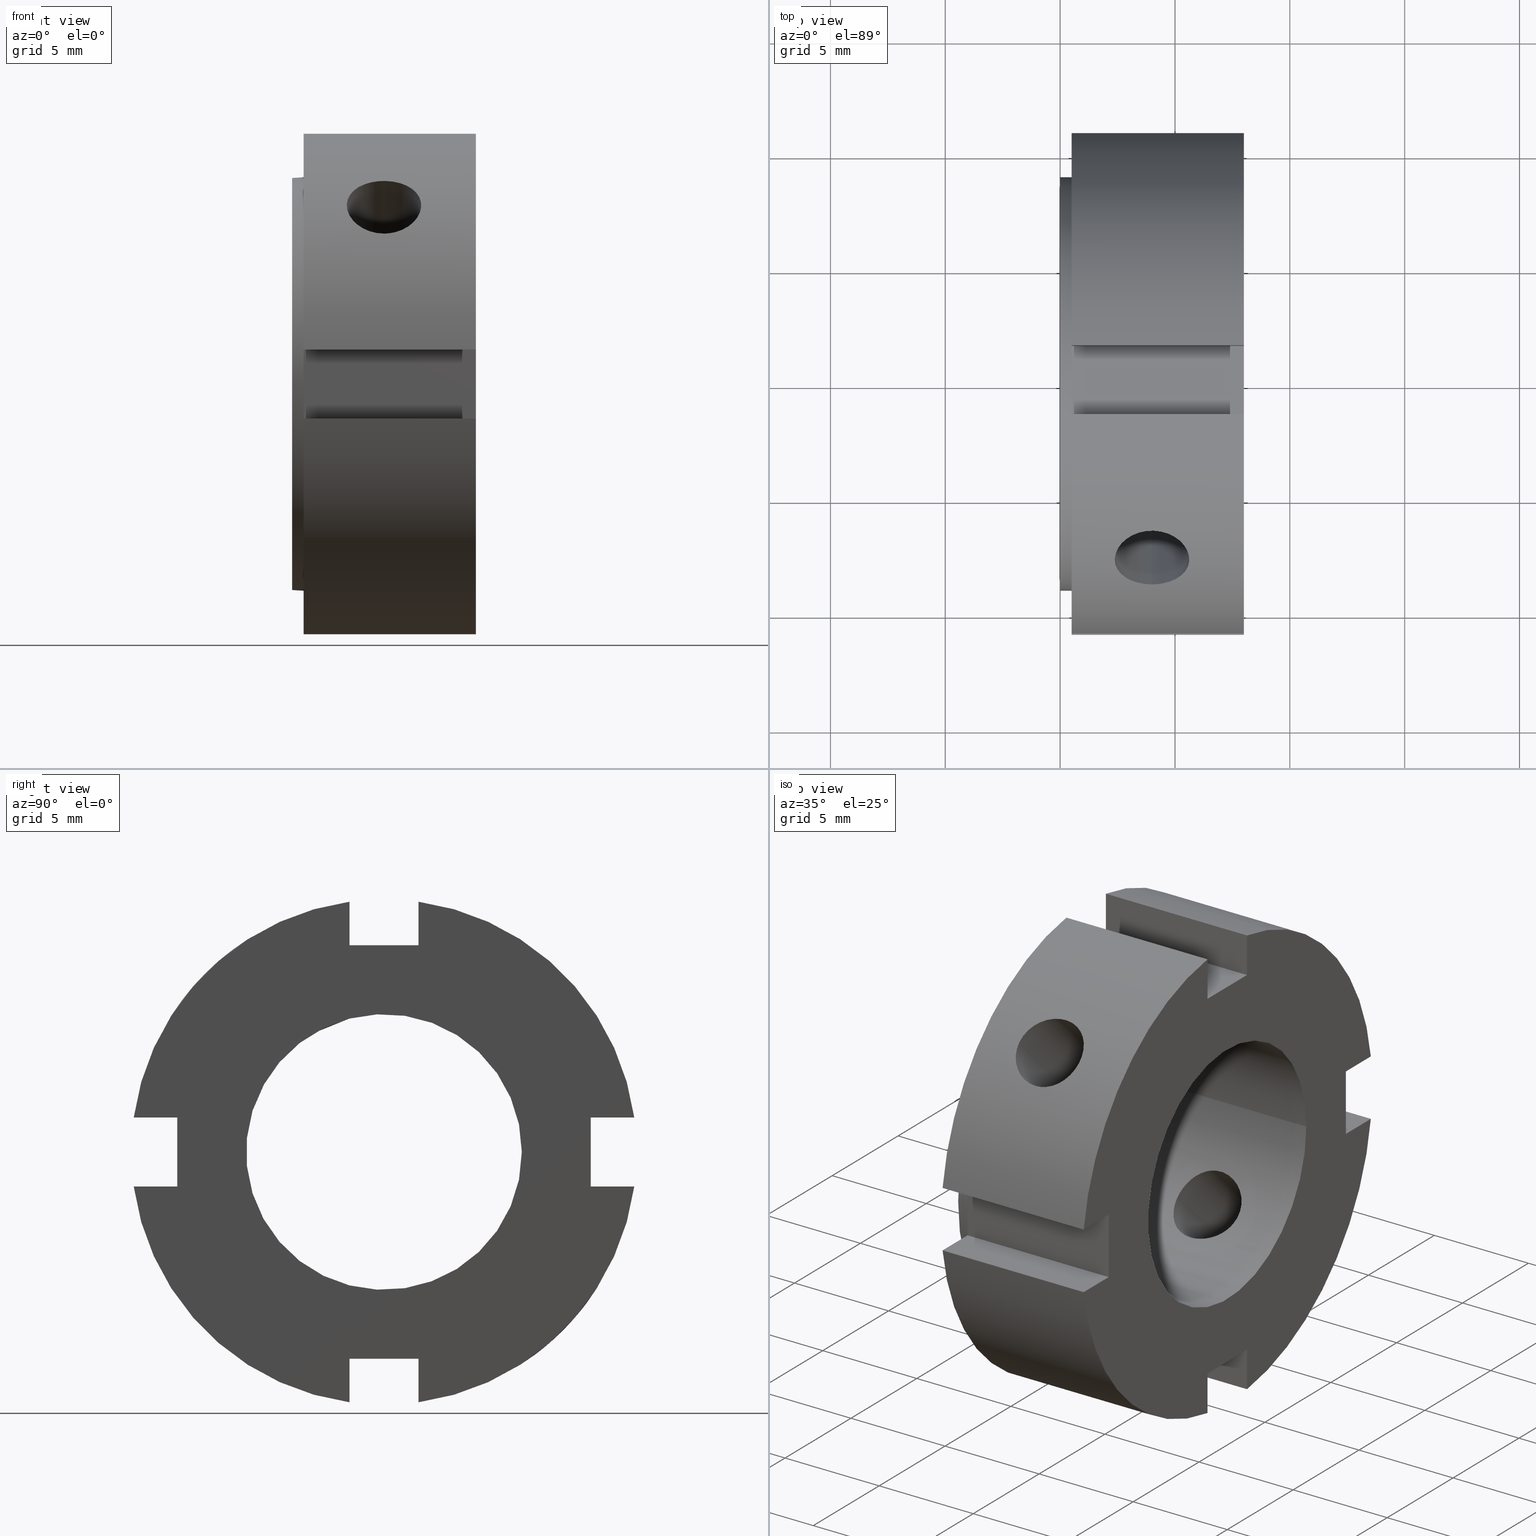
[diagram: canonical four-view strip — front | top / right | iso, engineering-drawing reading convention]
A machine part, canonical four-view strip (front | top / right | iso — engineering-drawing reading convention). The complete STEP part file that produces these views, byte-faithful:
ISO-10303-21;
HEADER;
/****************************************************************
 * Generated by software with PDE/Lib inside                    *
 * PDElib Version v51a, created Thu 01/14/2010                  *
 * ITI Transcendata (http://www.transcendata.com/)              *
 ****************************************************************/
FILE_DESCRIPTION((''),'2;1');
FILE_NAME('C:\\Users\\fkd-ct1n\\Desktop\\ZM\\FKD ZM 12.stp','2014-07-16T11:46:52',('fkd-ct1n'),(''),'Autodesk Inventor 2011','Autodesk Inventor 2011','');
FILE_SCHEMA(('AUTOMOTIVE_DESIGN { 1 0 10303 214 1 1 1 1 }'));
ENDSEC;
DATA;
#5=APPLICATION_CONTEXT('automotive design');
#6=APPLICATION_PROTOCOL_DEFINITION('International Standard','automotive_design',2001,#5);
#7=PRODUCT_CONTEXT('',#5,'mechanical');
#8=PRODUCT('FKD ZM 12','FKD ZM 12',$,(#7));
#9=PRODUCT_RELATED_PRODUCT_CATEGORY('part',$,(#8));
#10=PRODUCT_DEFINITION_FORMATION('',$,#8);
#11=PRODUCT_DEFINITION_CONTEXT('part definition',#5,'design');
#12=PRODUCT_DEFINITION('',$,#10,#11);
#18=(NAMED_UNIT(*)PLANE_ANGLE_UNIT()SI_UNIT($,.RADIAN.));
#19=DIMENSIONAL_EXPONENTS(0.0,0.0,0.0,0.0,0.0,0.0,0.0);
#20=PLANE_ANGLE_MEASURE_WITH_UNIT(PLANE_ANGLE_MEASURE(0.017453292500000),#18);
#24=(CONVERSION_BASED_UNIT('DEGREE',#20)NAMED_UNIT(#19)PLANE_ANGLE_UNIT());
#28=(NAMED_UNIT(*)SI_UNIT($,.STERADIAN.)SOLID_ANGLE_UNIT());
#32=(LENGTH_UNIT()NAMED_UNIT(*)SI_UNIT(.MILLI.,.METRE.));
#34=UNCERTAINTY_MEASURE_WITH_UNIT(LENGTH_MEASURE(0.010000000000000),#32,'DISTANCE_ACCURACY_VALUE','');
#36=(GEOMETRIC_REPRESENTATION_CONTEXT(3)GLOBAL_UNCERTAINTY_ASSIGNED_CONTEXT((#34))GLOBAL_UNIT_ASSIGNED_CONTEXT((#24,#28,#32))REPRESENTATION_CONTEXT('None','None'));
#37=AXIS2_PLACEMENT_3D('',#38,#39,#40);
#38=CARTESIAN_POINT('',(0.0,0.0,0.0));
#39=DIRECTION('',(0.0,0.0,1.0));
#40=DIRECTION('',(1.0,0.0,0.0));
#41=SHAPE_REPRESENTATION('',(#37),#36);
#42=PRODUCT_DEFINITION_SHAPE('','',#12);
#43=SHAPE_DEFINITION_REPRESENTATION(#42,#41);
#49=(NAMED_UNIT(*)PLANE_ANGLE_UNIT()SI_UNIT($,.RADIAN.));
#50=DIMENSIONAL_EXPONENTS(0.0,0.0,0.0,0.0,0.0,0.0,0.0);
#51=PLANE_ANGLE_MEASURE_WITH_UNIT(PLANE_ANGLE_MEASURE(0.017453292500000),#49);
#55=(CONVERSION_BASED_UNIT('DEGREE',#51)NAMED_UNIT(#50)PLANE_ANGLE_UNIT());
#59=(NAMED_UNIT(*)SI_UNIT($,.STERADIAN.)SOLID_ANGLE_UNIT());
#63=(LENGTH_UNIT()NAMED_UNIT(*)SI_UNIT(.MILLI.,.METRE.));
#65=UNCERTAINTY_MEASURE_WITH_UNIT(LENGTH_MEASURE(0.000001000000000),#63,'DISTANCE_ACCURACY_VALUE','');
#67=(GEOMETRIC_REPRESENTATION_CONTEXT(3)GLOBAL_UNCERTAINTY_ASSIGNED_CONTEXT((#65))GLOBAL_UNIT_ASSIGNED_CONTEXT((#55,#59,#63))REPRESENTATION_CONTEXT('','3D'));
#68=CARTESIAN_POINT('',(3.999999999999997,-22.516660498395392,22.516660498395396));
#69=DIRECTION('',(0.0,-0.707106781186547,0.707106781186548));
#70=DIRECTION('',(1.0,0.0,0.0));
#71=AXIS2_PLACEMENT_3D('',#68,#69,#70);
#72=CYLINDRICAL_SURFACE('',#71,1.621000000000000);
#73=CARTESIAN_POINT('',(3.999999999999997,-8.839475547570686,6.547035362963900));
#74=VERTEX_POINT('',#73);
#75=CARTESIAN_POINT('',(3.999999999999997,-8.839475547570686,6.547035362963900));
#76=CARTESIAN_POINT('',(3.796142769904900,-8.839475547570686,6.547035362963900));
#77=CARTESIAN_POINT('',(3.578903577574677,-8.815094253102171,6.580356519688689));
#78=CARTESIAN_POINT('',(3.179612484980892,-8.714136118925408,6.713479742443687));
#79=CARTESIAN_POINT('',(2.997534770452102,-8.637331490035944,6.813031413470040));
#80=CARTESIAN_POINT('',(2.710027378099478,-8.455333084321632,7.037629861303332));
#81=CARTESIAN_POINT('',(2.585322812457487,-8.337903377266315,7.177698352393069));
#82=CARTESIAN_POINT('',(2.419800965029881,-8.071517897913950,7.476000614545657));
#83=CARTESIAN_POINT('',(2.378999999999997,-7.922321083293664,7.634028102810378));
#84=CARTESIAN_POINT('',(2.378999999999997,-7.634028102810375,7.922321083293664));
#85=CARTESIAN_POINT('',(2.419800965029881,-7.476000614545653,8.071517897913953));
#86=CARTESIAN_POINT('',(2.585322812457488,-7.177698352393065,8.337903377266319));
#87=CARTESIAN_POINT('',(2.710027378099478,-7.037629861303331,8.455333084321634));
#88=CARTESIAN_POINT('',(2.997534770452102,-6.813031413470039,8.637331490035948));
#89=CARTESIAN_POINT('',(3.179612484980891,-6.713479742443685,8.714136118925412));
#90=CARTESIAN_POINT('',(3.578903577574677,-6.580356519688686,8.815094253102174));
#91=CARTESIAN_POINT('',(3.796142769904900,-6.547035362963899,8.839475547570688));
#92=CARTESIAN_POINT('',(4.203857230095094,-6.547035362963899,8.839475547570688));
#93=CARTESIAN_POINT('',(4.421096422425318,-6.580356519688686,8.815094253102174));
#94=CARTESIAN_POINT('',(4.820387515019104,-6.713479742443685,8.714136118925412));
#95=CARTESIAN_POINT('',(5.002465229547894,-6.813031413470039,8.637331490035948));
#96=CARTESIAN_POINT('',(5.289972621900516,-7.037629861303331,8.455333084321634));
#97=CARTESIAN_POINT('',(5.414677187542507,-7.177698352393066,8.337903377266319));
#98=CARTESIAN_POINT('',(5.580199034970114,-7.476000614545654,8.071517897913953));
#99=CARTESIAN_POINT('',(5.620999999999997,-7.634028102810375,7.922321083293664));
#100=CARTESIAN_POINT('',(5.620999999999997,-7.922321083293664,7.634028102810378));
#101=CARTESIAN_POINT('',(5.580199034970113,-8.071517897913951,7.476000614545656));
#102=CARTESIAN_POINT('',(5.414677187542508,-8.337903377266315,7.177698352393069));
#103=CARTESIAN_POINT('',(5.289972621900516,-8.455333084321632,7.037629861303332));
#104=CARTESIAN_POINT('',(5.002465229547893,-8.637331490035944,6.813031413470041));
#105=CARTESIAN_POINT('',(4.820387515019103,-8.714136118925408,6.713479742443687));
#106=CARTESIAN_POINT('',(4.421096422425317,-8.815094253102171,6.580356519688689));
#107=CARTESIAN_POINT('',(4.203857230095094,-8.839475547570686,6.547035362963900));
#108=CARTESIAN_POINT('',(3.999999999999997,-8.839475547570686,6.547035362963900));
#109=B_SPLINE_CURVE_WITH_KNOTS('',3,(#75,#76,#77,#78,#79,#80,#81,#82,#83,#84,#85,#86,#87,#88,#89,#90,#91,#92,#93,#94,#95,#96,#97,#98,#99,#100,#101,#102,#103,#104,#105,#106,#107,#108),.UNSPECIFIED.,.T.,.U.,(4,2,2,2,2,2,2,2,2,2,2,2,2,2,2,2,4),(0.0,0.061157169028529,0.122314338057058,0.183470514497522,0.244626690937986,0.305782867378450,0.366939043818914,0.428096212847443,0.489253381875972,0.550410550904501,0.611567719933030,0.672723896373494,0.733880072813958,0.795036249254422,0.856192425694887,0.917349594723415,0.978506763751944),.UNSPECIFIED.);
#110=EDGE_CURVE('',#74,#74,#109,.T.);
#111=ORIENTED_EDGE('',*,*,#110,.F.);
#112=EDGE_LOOP('',(#111));
#113=FACE_OUTER_BOUND('',#112,.T.);
#114=CARTESIAN_POINT('',(3.999999999999997,-5.231092122122688,2.938651937515902));
#115=VERTEX_POINT('',#114);
#116=CARTESIAN_POINT('',(3.999999999999996,-5.231092122122687,2.938651937515902));
#117=CARTESIAN_POINT('',(4.204656837932708,-5.231092122122687,2.938651937515902));
#118=CARTESIAN_POINT('',(4.422214958072740,-5.210515828807725,2.976213652590718));
#119=CARTESIAN_POINT('',(4.821267771985383,-5.123518944672560,3.123599893781188));
#120=CARTESIAN_POINT('',(5.002857040038760,-5.056647212474741,3.232901239618902));
#121=CARTESIAN_POINT('',(5.289555523837906,-4.893375600905684,3.475082512150400));
#122=CARTESIAN_POINT('',(5.414150183791429,-4.785836178459572,3.624365214205758));
#123=CARTESIAN_POINT('',(5.579899826618322,-4.533035214241452,3.935967845011837));
#124=CARTESIAN_POINT('',(5.620999999999997,-4.387327043984347,4.097954330254225));
#125=CARTESIAN_POINT('',(5.620999999999997,-4.097954330254225,4.387327043984348));
#126=CARTESIAN_POINT('',(5.579899826618323,-3.935967845011837,4.533035214241452));
#127=CARTESIAN_POINT('',(5.414150183791431,-3.624365214205757,4.785836178459574));
#128=CARTESIAN_POINT('',(5.289555523837906,-3.475082512150399,4.893375600905685));
#129=CARTESIAN_POINT('',(5.002857040038760,-3.232901239618901,5.056647212474742));
#130=CARTESIAN_POINT('',(4.821267771985383,-3.123599893781186,5.123518944672561));
#131=CARTESIAN_POINT('',(4.422214958072740,-2.976213652590716,5.210515828807726));
#132=CARTESIAN_POINT('',(4.204656837932709,-2.938651937515901,5.231092122122689));
#133=CARTESIAN_POINT('',(3.795343162067285,-2.938651937515901,5.231092122122689));
#134=CARTESIAN_POINT('',(3.577785041927254,-2.976213652590716,5.210515828807726));
#135=CARTESIAN_POINT('',(3.178732228014611,-3.123599893781186,5.123518944672561));
#136=CARTESIAN_POINT('',(2.997142959961234,-3.232901239618901,5.056647212474742));
#137=CARTESIAN_POINT('',(2.710444476162088,-3.475082512150399,4.893375600905685));
#138=CARTESIAN_POINT('',(2.585849816208564,-3.624365214205758,4.785836178459574));
#139=CARTESIAN_POINT('',(2.420100173381671,-3.935967845011837,4.533035214241453));
#140=CARTESIAN_POINT('',(2.378999999999997,-4.097954330254225,4.387327043984348));
#141=CARTESIAN_POINT('',(2.378999999999997,-4.387327043984347,4.097954330254225));
#142=CARTESIAN_POINT('',(2.420100173381672,-4.533035214241451,3.935967845011838));
#143=CARTESIAN_POINT('',(2.585849816208565,-4.785836178459572,3.624365214205759));
#144=CARTESIAN_POINT('',(2.710444476162088,-4.893375600905684,3.475082512150400));
#145=CARTESIAN_POINT('',(2.997142959961234,-5.056647212474741,3.232901239618902));
#146=CARTESIAN_POINT('',(3.178732228014611,-5.123518944672561,3.123599893781186));
#147=CARTESIAN_POINT('',(3.577785041927255,-5.210515828807725,2.976213652590716));
#148=CARTESIAN_POINT('',(3.795343162067285,-5.231092122122687,2.938651937515902));
#149=CARTESIAN_POINT('',(3.999999999999997,-5.231092122122687,2.938651937515902));
#150=B_SPLINE_CURVE_WITH_KNOTS('',3,(#116,#117,#118,#119,#120,#121,#122,#123,#124,#125,#126,#127,#128,#129,#130,#131,#132,#133,#134,#135,#136,#137,#138,#139,#140,#141,#142,#143,#144,#145,#146,#147,#148,#149),.UNSPECIFIED.,.T.,.U.,(4,2,2,2,2,2,2,2,2,2,2,2,2,2,2,2,4),(0.0,0.061397051379814,0.122794102759627,0.184179325210304,0.245564547660981,0.306949770111658,0.368334992562335,0.429732043942149,0.491129095321962,0.552526146701776,0.613923198081590,0.675308420532267,0.736693642982944,0.798078865433621,0.859464087884298,0.920861139264111,0.982258190643925),.UNSPECIFIED.);
#151=EDGE_CURVE('',#115,#115,#150,.T.);
#152=ORIENTED_EDGE('',*,*,#151,.F.);
#153=EDGE_LOOP('',(#152));
#154=FACE_BOUND('',#153,.T.);
#155=ADVANCED_FACE('',(#113,#154),#72,.F.);
#156=CARTESIAN_POINT('',(3.999999999999997,22.516660498395392,-22.516660498395396));
#157=DIRECTION('',(0.0,-0.707106781186547,0.707106781186548));
#158=DIRECTION('',(1.0,0.0,0.0));
#159=AXIS2_PLACEMENT_3D('',#156,#157,#158);
#160=CYLINDRICAL_SURFACE('',#159,1.621000000000000);
#161=CARTESIAN_POINT('',(3.999999999999997,6.547035362963898,-8.839475547570688));
#162=VERTEX_POINT('',#161);
#163=CARTESIAN_POINT('',(3.999999999999997,6.547035362963898,-8.839475547570688));
#164=CARTESIAN_POINT('',(4.203857230095093,6.547035362963898,-8.839475547570688));
#165=CARTESIAN_POINT('',(4.421096422425317,6.580356519688686,-8.815094253102174));
#166=CARTESIAN_POINT('',(4.820387515019103,6.713479742443685,-8.714136118925412));
#167=CARTESIAN_POINT('',(5.002465229547893,6.813031413470039,-8.637331490035948));
#168=CARTESIAN_POINT('',(5.289972621900516,7.037629861303331,-8.455333084321634));
#169=CARTESIAN_POINT('',(5.414677187542506,7.177698352393065,-8.337903377266315));
#170=CARTESIAN_POINT('',(5.580199034970113,7.476000614545653,-8.071517897913950));
#171=CARTESIAN_POINT('',(5.620999999999997,7.634028102810376,-7.922321083293664));
#172=CARTESIAN_POINT('',(5.620999999999997,7.922321083293664,-7.634028102810378));
#173=CARTESIAN_POINT('',(5.580199034970113,8.071517897913951,-7.476000614545656));
#174=CARTESIAN_POINT('',(5.414677187542508,8.337903377266315,-7.177698352393069));
#175=CARTESIAN_POINT('',(5.289972621900516,8.455333084321632,-7.037629861303332));
#176=CARTESIAN_POINT('',(5.002465229547893,8.637331490035944,-6.813031413470040));
#177=CARTESIAN_POINT('',(4.820387515019102,8.714136118925408,-6.713479742443687));
#178=CARTESIAN_POINT('',(4.421096422425316,8.815094253102171,-6.580356519688689));
#179=CARTESIAN_POINT('',(4.203857230095093,8.839475547570686,-6.547035362963900));
#180=CARTESIAN_POINT('',(3.796142769904900,8.839475547570686,-6.547035362963900));
#181=CARTESIAN_POINT('',(3.578903577574677,8.815094253102171,-6.580356519688689));
#182=CARTESIAN_POINT('',(3.179612484980891,8.714136118925408,-6.713479742443687));
#183=CARTESIAN_POINT('',(2.997534770452102,8.637331490035944,-6.813031413470041));
#184=CARTESIAN_POINT('',(2.710027378099478,8.455333084321632,-7.037629861303332));
#185=CARTESIAN_POINT('',(2.585322812457487,8.337903377266315,-7.177698352393069));
#186=CARTESIAN_POINT('',(2.419800965029881,8.071517897913951,-7.476000614545656));
#187=CARTESIAN_POINT('',(2.378999999999997,7.922321083293664,-7.634028102810378));
#188=CARTESIAN_POINT('',(2.378999999999997,7.634028102810375,-7.922321083293664));
#189=CARTESIAN_POINT('',(2.419800965029881,7.476000614545653,-8.071517897913953));
#190=CARTESIAN_POINT('',(2.585322812457488,7.177698352393065,-8.337903377266319));
#191=CARTESIAN_POINT('',(2.710027378099478,7.037629861303331,-8.455333084321634));
#192=CARTESIAN_POINT('',(2.997534770452102,6.813031413470039,-8.637331490035948));
#193=CARTESIAN_POINT('',(3.179612484980891,6.713479742443685,-8.714136118925412));
#194=CARTESIAN_POINT('',(3.578903577574676,6.580356519688686,-8.815094253102174));
#195=CARTESIAN_POINT('',(3.796142769904900,6.547035362963898,-8.839475547570688));
#196=CARTESIAN_POINT('',(3.999999999999997,6.547035362963898,-8.839475547570688));
#197=B_SPLINE_CURVE_WITH_KNOTS('',3,(#163,#164,#165,#166,#167,#168,#169,#170,#171,#172,#173,#174,#175,#176,#177,#178,#179,#180,#181,#182,#183,#184,#185,#186,#187,#188,#189,#190,#191,#192,#193,#194,#195,#196),.UNSPECIFIED.,.T.,.U.,(4,2,2,2,2,2,2,2,2,2,2,2,2,2,2,2,4),(0.0,0.061157169028529,0.122314338057058,0.183470514497522,0.244626690937986,0.305782867378450,0.366939043818914,0.428096212847443,0.489253381875972,0.550410550904501,0.611567719933030,0.672723896373494,0.733880072813958,0.795036249254422,0.856192425694887,0.917349594723415,0.978506763751944),.UNSPECIFIED.);
#198=EDGE_CURVE('',#162,#162,#197,.T.);
#199=ORIENTED_EDGE('',*,*,#198,.F.);
#200=EDGE_LOOP('',(#199));
#201=FACE_OUTER_BOUND('',#200,.T.);
#202=CARTESIAN_POINT('',(3.999999999999997,2.938651937515901,-5.231092122122689));
#203=VERTEX_POINT('',#202);
#204=CARTESIAN_POINT('',(3.999999999999996,2.938651937515900,-5.231092122122688));
#205=CARTESIAN_POINT('',(3.795343162067284,2.938651937515900,-5.231092122122688));
#206=CARTESIAN_POINT('',(3.577785041927255,2.976213652590716,-5.210515828807726));
#207=CARTESIAN_POINT('',(3.178732228014611,3.123599893781186,-5.123518944672561));
#208=CARTESIAN_POINT('',(2.997142959961234,3.232901239618901,-5.056647212474742));
#209=CARTESIAN_POINT('',(2.710444476162088,3.475082512150399,-4.893375600905685));
#210=CARTESIAN_POINT('',(2.585849816208564,3.624365214205758,-4.785836178459574));
#211=CARTESIAN_POINT('',(2.420100173381671,3.935967845011837,-4.533035214241453));
#212=CARTESIAN_POINT('',(2.378999999999997,4.097954330254225,-4.387327043984348));
#213=CARTESIAN_POINT('',(2.378999999999997,4.387327043984347,-4.097954330254225));
#214=CARTESIAN_POINT('',(2.420100173381672,4.533035214241452,-3.935967845011837));
#215=CARTESIAN_POINT('',(2.585849816208565,4.785836178459572,-3.624365214205758));
#216=CARTESIAN_POINT('',(2.710444476162088,4.893375600905684,-3.475082512150400));
#217=CARTESIAN_POINT('',(2.997142959961234,5.056647212474741,-3.232901239618902));
#218=CARTESIAN_POINT('',(3.178732228014611,5.123518944672560,-3.123599893781188));
#219=CARTESIAN_POINT('',(3.577785041927254,5.210515828807725,-2.976213652590718));
#220=CARTESIAN_POINT('',(3.795343162067285,5.231092122122688,-2.938651937515901));
#221=CARTESIAN_POINT('',(4.204656837932709,5.231092122122688,-2.938651937515901));
#222=CARTESIAN_POINT('',(4.422214958072738,5.210515828807727,-2.976213652590716));
#223=CARTESIAN_POINT('',(4.821267771985381,5.123518944672564,-3.123599893781186));
#224=CARTESIAN_POINT('',(5.002857040038760,5.056647212474744,-3.232901239618897));
#225=CARTESIAN_POINT('',(5.289555523837906,4.893375600905687,-3.475082512150395));
#226=CARTESIAN_POINT('',(5.414150183791428,4.785836178459576,-3.624365214205756));
#227=CARTESIAN_POINT('',(5.579899826618321,4.533035214241454,-3.935967845011836));
#228=CARTESIAN_POINT('',(5.620999999999997,4.387327043984348,-4.097954330254225));
#229=CARTESIAN_POINT('',(5.620999999999997,4.097954330254225,-4.387327043984348));
#230=CARTESIAN_POINT('',(5.579899826618323,3.935967845011838,-4.533035214241453));
#231=CARTESIAN_POINT('',(5.414150183791431,3.624365214205758,-4.785836178459574));
#232=CARTESIAN_POINT('',(5.289555523837906,3.475082512150399,-4.893375600905685));
#233=CARTESIAN_POINT('',(5.002857040038762,3.232901239618900,-5.056647212474742));
#234=CARTESIAN_POINT('',(4.821267771985384,3.123599893781186,-5.123518944672561));
#235=CARTESIAN_POINT('',(4.422214958072740,2.976213652590716,-5.210515828807726));
#236=CARTESIAN_POINT('',(4.204656837932709,2.938651937515900,-5.231092122122689));
#237=CARTESIAN_POINT('',(3.999999999999997,2.938651937515900,-5.231092122122689));
#238=B_SPLINE_CURVE_WITH_KNOTS('',3,(#204,#205,#206,#207,#208,#209,#210,#211,#212,#213,#214,#215,#216,#217,#218,#219,#220,#221,#222,#223,#224,#225,#226,#227,#228,#229,#230,#231,#232,#233,#234,#235,#236,#237),.UNSPECIFIED.,.T.,.U.,(4,2,2,2,2,2,2,2,2,2,2,2,2,2,2,2,4),(0.0,0.061397051379814,0.122794102759627,0.184179325210304,0.245564547660981,0.306949770111658,0.368334992562335,0.429732043942149,0.491129095321962,0.552526146701776,0.613923198081589,0.675308420532267,0.736693642982944,0.798078865433621,0.859464087884298,0.920861139264112,0.982258190643925),.UNSPECIFIED.);
#239=EDGE_CURVE('',#203,#203,#238,.T.);
#240=ORIENTED_EDGE('',*,*,#239,.F.);
#241=EDGE_LOOP('',(#240));
#242=FACE_BOUND('',#241,.T.);
#243=ADVANCED_FACE('',(#201,#242),#160,.F.);
#244=CARTESIAN_POINT('',(7.999999999999998,-1.500000000000002,-8.999999999999996));
#245=DIRECTION('',(0.0,-1.0,0.0));
#246=DIRECTION('',(-1.0,0.0,0.0));
#247=AXIS2_PLACEMENT_3D('',#244,#245,#246);
#248=PLANE('',#247);
#249=CARTESIAN_POINT('',(0.499999999999998,-1.500000000000002,-8.999999999999996));
#250=VERTEX_POINT('',#249);
#251=CARTESIAN_POINT('',(0.499999999999998,-1.500000000000002,-10.897247358851681));
#252=VERTEX_POINT('',#251);
#253=CARTESIAN_POINT('',(0.499999999999998,-1.500000000000003,-8.999999999999996));
#254=DIRECTION('',(0.0,0.0,-1.0));
#255=VECTOR('',#254,1.897247358851683);
#256=LINE('',#253,#255);
#257=EDGE_CURVE('',#250,#252,#256,.T.);
#258=ORIENTED_EDGE('',*,*,#257,.F.);
#259=CARTESIAN_POINT('',(7.999999999999998,-1.500000000000002,-8.999999999999996));
#260=VERTEX_POINT('',#259);
#261=CARTESIAN_POINT('',(7.999999999999998,-1.500000000000002,-8.999999999999996));
#262=DIRECTION('',(-1.0,0.0,0.0));
#263=VECTOR('',#262,7.500000000000000);
#264=LINE('',#261,#263);
#265=EDGE_CURVE('',#260,#250,#264,.T.);
#266=ORIENTED_EDGE('',*,*,#265,.F.);
#267=CARTESIAN_POINT('',(7.999999999999998,-1.500000000000002,-10.897247358851681));
#268=VERTEX_POINT('',#267);
#269=CARTESIAN_POINT('',(7.999999999999998,-1.500000000000002,-10.897247358851679));
#270=DIRECTION('',(0.0,0.0,1.0));
#271=VECTOR('',#270,1.897247358851683);
#272=LINE('',#269,#271);
#273=EDGE_CURVE('',#268,#260,#272,.T.);
#274=ORIENTED_EDGE('',*,*,#273,.F.);
#275=CARTESIAN_POINT('',(0.499999999999998,-1.500000000000002,-10.897247358851681));
#276=DIRECTION('',(1.0,0.0,0.0));
#277=VECTOR('',#276,7.500000000000000);
#278=LINE('',#275,#277);
#279=EDGE_CURVE('',#252,#268,#278,.T.);
#280=ORIENTED_EDGE('',*,*,#279,.F.);
#281=EDGE_LOOP('',(#258,#266,#274,#280));
#282=FACE_OUTER_BOUND('',#281,.T.);
#283=ADVANCED_FACE('',(#282),#248,.F.);
#284=CARTESIAN_POINT('',(7.999999999999998,1.499999999999998,-10.999999999999996));
#285=DIRECTION('',(0.0,1.0,0.0));
#286=DIRECTION('',(1.0,0.0,0.0));
#287=AXIS2_PLACEMENT_3D('',#284,#285,#286);
#288=PLANE('',#287);
#289=CARTESIAN_POINT('',(0.499999999999998,1.499999999999998,-10.897247358851681));
#290=VERTEX_POINT('',#289);
#291=CARTESIAN_POINT('',(0.499999999999998,1.499999999999999,-8.999999999999996));
#292=VERTEX_POINT('',#291);
#293=CARTESIAN_POINT('',(0.499999999999998,1.499999999999998,-10.897247358851681));
#294=DIRECTION('',(0.0,0.0,1.0));
#295=VECTOR('',#294,1.897247358851685);
#296=LINE('',#293,#295);
#297=EDGE_CURVE('',#290,#292,#296,.T.);
#298=ORIENTED_EDGE('',*,*,#297,.F.);
#299=CARTESIAN_POINT('',(7.999999999999998,1.499999999999998,-10.897247358851681));
#300=VERTEX_POINT('',#299);
#301=CARTESIAN_POINT('',(7.999999999999998,1.499999999999998,-10.897247358851681));
#302=DIRECTION('',(-1.0,0.0,0.0));
#303=VECTOR('',#302,7.500000000000000);
#304=LINE('',#301,#303);
#305=EDGE_CURVE('',#300,#290,#304,.T.);
#306=ORIENTED_EDGE('',*,*,#305,.F.);
#307=CARTESIAN_POINT('',(7.999999999999998,1.499999999999999,-8.999999999999996));
#308=VERTEX_POINT('',#307);
#309=CARTESIAN_POINT('',(7.999999999999998,1.499999999999998,-8.999999999999996));
#310=DIRECTION('',(0.0,0.0,-1.0));
#311=VECTOR('',#310,1.897247358851685);
#312=LINE('',#309,#311);
#313=EDGE_CURVE('',#308,#300,#312,.T.);
#314=ORIENTED_EDGE('',*,*,#313,.F.);
#315=CARTESIAN_POINT('',(7.999999999999998,1.499999999999999,-8.999999999999996));
#316=DIRECTION('',(-1.0,0.0,0.0));
#317=VECTOR('',#316,7.500000000000000);
#318=LINE('',#315,#317);
#319=EDGE_CURVE('',#308,#292,#318,.T.);
#320=ORIENTED_EDGE('',*,*,#319,.T.);
#321=EDGE_LOOP('',(#298,#306,#314,#320));
#322=FACE_OUTER_BOUND('',#321,.T.);
#323=ADVANCED_FACE('',(#322),#288,.F.);
#324=CARTESIAN_POINT('',(7.999999999999998,1.499999999999999,-8.999999999999996));
#325=DIRECTION('',(0.0,0.0,1.0));
#326=DIRECTION('',(0.0,-1.0,0.0));
#327=AXIS2_PLACEMENT_3D('',#324,#325,#326);
#328=PLANE('',#327);
#329=CARTESIAN_POINT('',(0.499999999999998,-1.665335E-015,-8.999999999999996));
#330=VERTEX_POINT('',#329);
#331=CARTESIAN_POINT('',(0.499999999999998,1.499999999999999,-8.999999999999996));
#332=DIRECTION('',(0.0,-1.0,0.0));
#333=VECTOR('',#332,1.500000000000000);
#334=LINE('',#331,#333);
#335=EDGE_CURVE('',#292,#330,#334,.T.);
#336=ORIENTED_EDGE('',*,*,#335,.F.);
#337=ORIENTED_EDGE('',*,*,#319,.F.);
#338=CARTESIAN_POINT('',(7.999999999999998,-1.500000000000002,-8.999999999999995));
#339=DIRECTION('',(0.0,1.0,0.0));
#340=VECTOR('',#339,3.0);
#341=LINE('',#338,#340);
#342=EDGE_CURVE('',#260,#308,#341,.T.);
#343=ORIENTED_EDGE('',*,*,#342,.F.);
#344=ORIENTED_EDGE('',*,*,#265,.T.);
#345=CARTESIAN_POINT('',(0.499999999999998,-8.881784E-016,-8.999999999999995));
#346=DIRECTION('',(0.0,-1.0,0.0));
#347=VECTOR('',#346,1.500000000000001);
#348=LINE('',#345,#347);
#349=EDGE_CURVE('',#330,#250,#348,.T.);
#350=ORIENTED_EDGE('',*,*,#349,.F.);
#351=EDGE_LOOP('',(#336,#337,#343,#344,#350));
#352=FACE_OUTER_BOUND('',#351,.T.);
#353=ADVANCED_FACE('',(#352),#328,.F.);
#354=CARTESIAN_POINT('',(7.999999999999998,-8.999999999999996,1.500000000000001));
#355=DIRECTION('',(0.0,0.0,1.0));
#356=DIRECTION('',(-1.0,0.0,0.0));
#357=AXIS2_PLACEMENT_3D('',#354,#355,#356);
#358=PLANE('',#357);
#359=CARTESIAN_POINT('',(0.499999999999998,-8.999999999999996,1.500000000000001));
#360=VERTEX_POINT('',#359);
#361=CARTESIAN_POINT('',(0.499999999999998,-10.897247358851681,1.500000000000001));
#362=VERTEX_POINT('',#361);
#363=CARTESIAN_POINT('',(0.499999999999998,-8.999999999999996,1.500000000000001));
#364=DIRECTION('',(0.0,-1.0,0.0));
#365=VECTOR('',#364,1.897247358851685);
#366=LINE('',#363,#365);
#367=EDGE_CURVE('',#360,#362,#366,.T.);
#368=ORIENTED_EDGE('',*,*,#367,.F.);
#369=CARTESIAN_POINT('',(7.999999999999998,-8.999999999999996,1.500000000000001));
#370=VERTEX_POINT('',#369);
#371=CARTESIAN_POINT('',(7.999999999999998,-8.999999999999996,1.500000000000001));
#372=DIRECTION('',(-1.0,0.0,0.0));
#373=VECTOR('',#372,7.500000000000000);
#374=LINE('',#371,#373);
#375=EDGE_CURVE('',#370,#360,#374,.T.);
#376=ORIENTED_EDGE('',*,*,#375,.F.);
#377=CARTESIAN_POINT('',(7.999999999999998,-10.897247358851681,1.500000000000001));
#378=VERTEX_POINT('',#377);
#379=CARTESIAN_POINT('',(7.999999999999998,-10.897247358851679,1.500000000000001));
#380=DIRECTION('',(0.0,1.0,0.0));
#381=VECTOR('',#380,1.897247358851683);
#382=LINE('',#379,#381);
#383=EDGE_CURVE('',#378,#370,#382,.T.);
#384=ORIENTED_EDGE('',*,*,#383,.F.);
#385=CARTESIAN_POINT('',(0.499999999999998,-10.897247358851681,1.500000000000001));
#386=DIRECTION('',(1.0,0.0,0.0));
#387=VECTOR('',#386,7.500000000000000);
#388=LINE('',#385,#387);
#389=EDGE_CURVE('',#362,#378,#388,.T.);
#390=ORIENTED_EDGE('',*,*,#389,.F.);
#391=EDGE_LOOP('',(#368,#376,#384,#390));
#392=FACE_OUTER_BOUND('',#391,.T.);
#393=ADVANCED_FACE('',(#392),#358,.F.);
#394=CARTESIAN_POINT('',(7.999999999999998,-10.999999999999996,-1.499999999999999));
#395=DIRECTION('',(0.0,0.0,-1.0));
#396=DIRECTION('',(1.0,0.0,0.0));
#397=AXIS2_PLACEMENT_3D('',#394,#395,#396);
#398=PLANE('',#397);
#399=CARTESIAN_POINT('',(0.499999999999998,-10.897247358851681,-1.499999999999999));
#400=VERTEX_POINT('',#399);
#401=CARTESIAN_POINT('',(0.499999999999998,-8.999999999999996,-1.499999999999999));
#402=VERTEX_POINT('',#401);
#403=CARTESIAN_POINT('',(0.499999999999998,-10.897247358851679,-1.499999999999999));
#404=DIRECTION('',(0.0,1.0,0.0));
#405=VECTOR('',#404,1.897247358851683);
#406=LINE('',#403,#405);
#407=EDGE_CURVE('',#400,#402,#406,.T.);
#408=ORIENTED_EDGE('',*,*,#407,.F.);
#409=CARTESIAN_POINT('',(7.999999999999998,-10.897247358851681,-1.499999999999999));
#410=VERTEX_POINT('',#409);
#411=CARTESIAN_POINT('',(7.999999999999998,-10.897247358851681,-1.499999999999999));
#412=DIRECTION('',(-1.0,0.0,0.0));
#413=VECTOR('',#412,7.500000000000000);
#414=LINE('',#411,#413);
#415=EDGE_CURVE('',#410,#400,#414,.T.);
#416=ORIENTED_EDGE('',*,*,#415,.F.);
#417=CARTESIAN_POINT('',(7.999999999999998,-8.999999999999996,-1.499999999999999));
#418=VERTEX_POINT('',#417);
#419=CARTESIAN_POINT('',(7.999999999999998,-8.999999999999996,-1.499999999999999));
#420=DIRECTION('',(0.0,-1.0,0.0));
#421=VECTOR('',#420,1.897247358851683);
#422=LINE('',#419,#421);
#423=EDGE_CURVE('',#418,#410,#422,.T.);
#424=ORIENTED_EDGE('',*,*,#423,.F.);
#425=CARTESIAN_POINT('',(7.999999999999998,-8.999999999999996,-1.499999999999999));
#426=DIRECTION('',(-1.0,0.0,0.0));
#427=VECTOR('',#426,7.500000000000000);
#428=LINE('',#425,#427);
#429=EDGE_CURVE('',#418,#402,#428,.T.);
#430=ORIENTED_EDGE('',*,*,#429,.T.);
#431=EDGE_LOOP('',(#408,#416,#424,#430));
#432=FACE_OUTER_BOUND('',#431,.T.);
#433=ADVANCED_FACE('',(#432),#398,.F.);
#434=CARTESIAN_POINT('',(7.999999999999998,-8.999999999999996,-1.499999999999999));
#435=DIRECTION('',(0.0,1.0,0.0));
#436=DIRECTION('',(0.0,0.0,1.0));
#437=AXIS2_PLACEMENT_3D('',#434,#435,#436);
#438=PLANE('',#437);
#439=CARTESIAN_POINT('',(0.499999999999998,-8.999999999999996,1.110223E-015));
#440=VERTEX_POINT('',#439);
#441=CARTESIAN_POINT('',(0.499999999999998,-8.999999999999996,-1.499999999999999));
#442=DIRECTION('',(0.0,0.0,1.0));
#443=VECTOR('',#442,1.500000000000000);
#444=LINE('',#441,#443);
#445=EDGE_CURVE('',#402,#440,#444,.T.);
#446=ORIENTED_EDGE('',*,*,#445,.F.);
#447=ORIENTED_EDGE('',*,*,#429,.F.);
#448=CARTESIAN_POINT('',(7.999999999999998,-8.999999999999996,1.500000000000002));
#449=DIRECTION('',(0.0,0.0,-1.0));
#450=VECTOR('',#449,3.000000000000001);
#451=LINE('',#448,#450);
#452=EDGE_CURVE('',#370,#418,#451,.T.);
#453=ORIENTED_EDGE('',*,*,#452,.F.);
#454=ORIENTED_EDGE('',*,*,#375,.T.);
#455=CARTESIAN_POINT('',(0.499999999999998,-8.999999999999996,1.110223E-015));
#456=DIRECTION('',(0.0,0.0,1.0));
#457=VECTOR('',#456,1.500000000000000);
#458=LINE('',#455,#457);
#459=EDGE_CURVE('',#440,#360,#458,.T.);
#460=ORIENTED_EDGE('',*,*,#459,.F.);
#461=EDGE_LOOP('',(#446,#447,#453,#454,#460));
#462=FACE_OUTER_BOUND('',#461,.T.);
#463=ADVANCED_FACE('',(#462),#438,.F.);
#464=CARTESIAN_POINT('',(7.999999999999998,1.500000000000001,8.999999999999996));
#465=DIRECTION('',(0.0,1.0,0.0));
#466=DIRECTION('',(-1.0,0.0,0.0));
#467=AXIS2_PLACEMENT_3D('',#464,#465,#466);
#468=PLANE('',#467);
#469=CARTESIAN_POINT('',(0.499999999999998,1.500000000000001,8.999999999999996));
#470=VERTEX_POINT('',#469);
#471=CARTESIAN_POINT('',(0.499999999999998,1.500000000000000,10.897247358851681));
#472=VERTEX_POINT('',#471);
#473=CARTESIAN_POINT('',(0.499999999999998,1.500000000000000,8.999999999999996));
#474=DIRECTION('',(0.0,0.0,1.0));
#475=VECTOR('',#474,1.897247358851685);
#476=LINE('',#473,#475);
#477=EDGE_CURVE('',#470,#472,#476,.T.);
#478=ORIENTED_EDGE('',*,*,#477,.F.);
#479=CARTESIAN_POINT('',(7.999999999999998,1.500000000000001,8.999999999999996));
#480=VERTEX_POINT('',#479);
#481=CARTESIAN_POINT('',(7.999999999999998,1.500000000000001,8.999999999999996));
#482=DIRECTION('',(-1.0,0.0,0.0));
#483=VECTOR('',#482,7.500000000000000);
#484=LINE('',#481,#483);
#485=EDGE_CURVE('',#480,#470,#484,.T.);
#486=ORIENTED_EDGE('',*,*,#485,.F.);
#487=CARTESIAN_POINT('',(7.999999999999998,1.500000000000001,10.897247358851681));
#488=VERTEX_POINT('',#487);
#489=CARTESIAN_POINT('',(7.999999999999998,1.500000000000001,10.897247358851679));
#490=DIRECTION('',(0.0,0.0,-1.0));
#491=VECTOR('',#490,1.897247358851683);
#492=LINE('',#489,#491);
#493=EDGE_CURVE('',#488,#480,#492,.T.);
#494=ORIENTED_EDGE('',*,*,#493,.F.);
#495=CARTESIAN_POINT('',(0.499999999999998,1.500000000000001,10.897247358851681));
#496=DIRECTION('',(1.0,0.0,0.0));
#497=VECTOR('',#496,7.500000000000000);
#498=LINE('',#495,#497);
#499=EDGE_CURVE('',#472,#488,#498,.T.);
#500=ORIENTED_EDGE('',*,*,#499,.F.);
#501=EDGE_LOOP('',(#478,#486,#494,#500));
#502=FACE_OUTER_BOUND('',#501,.T.);
#503=ADVANCED_FACE('',(#502),#468,.F.);
#504=CARTESIAN_POINT('',(7.999999999999998,-1.499999999999999,10.999999999999996));
#505=DIRECTION('',(0.0,-1.0,0.0));
#506=DIRECTION('',(1.0,0.0,0.0));
#507=AXIS2_PLACEMENT_3D('',#504,#505,#506);
#508=PLANE('',#507);
#509=CARTESIAN_POINT('',(0.499999999999998,-1.500000000000000,10.897247358851681));
#510=VERTEX_POINT('',#509);
#511=CARTESIAN_POINT('',(0.499999999999998,-1.500000000000000,8.999999999999996));
#512=VERTEX_POINT('',#511);
#513=CARTESIAN_POINT('',(0.499999999999998,-1.500000000000000,10.897247358851679));
#514=DIRECTION('',(0.0,0.0,-1.0));
#515=VECTOR('',#514,1.897247358851683);
#516=LINE('',#513,#515);
#517=EDGE_CURVE('',#510,#512,#516,.T.);
#518=ORIENTED_EDGE('',*,*,#517,.F.);
#519=CARTESIAN_POINT('',(7.999999999999998,-1.499999999999999,10.897247358851681));
#520=VERTEX_POINT('',#519);
#521=CARTESIAN_POINT('',(7.999999999999998,-1.499999999999999,10.897247358851681));
#522=DIRECTION('',(-1.0,0.0,0.0));
#523=VECTOR('',#522,7.500000000000000);
#524=LINE('',#521,#523);
#525=EDGE_CURVE('',#520,#510,#524,.T.);
#526=ORIENTED_EDGE('',*,*,#525,.F.);
#527=CARTESIAN_POINT('',(7.999999999999998,-1.500000000000000,8.999999999999996));
#528=VERTEX_POINT('',#527);
#529=CARTESIAN_POINT('',(7.999999999999998,-1.500000000000000,8.999999999999996));
#530=DIRECTION('',(0.0,0.0,1.0));
#531=VECTOR('',#530,1.897247358851683);
#532=LINE('',#529,#531);
#533=EDGE_CURVE('',#528,#520,#532,.T.);
#534=ORIENTED_EDGE('',*,*,#533,.F.);
#535=CARTESIAN_POINT('',(7.999999999999998,-1.500000000000000,8.999999999999996));
#536=DIRECTION('',(-1.0,0.0,0.0));
#537=VECTOR('',#536,7.500000000000000);
#538=LINE('',#535,#537);
#539=EDGE_CURVE('',#528,#512,#538,.T.);
#540=ORIENTED_EDGE('',*,*,#539,.T.);
#541=EDGE_LOOP('',(#518,#526,#534,#540));
#542=FACE_OUTER_BOUND('',#541,.T.);
#543=ADVANCED_FACE('',(#542),#508,.F.);
#544=CARTESIAN_POINT('',(7.999999999999998,-1.500000000000000,8.999999999999996));
#545=DIRECTION('',(0.0,0.0,-1.0));
#546=DIRECTION('',(0.0,1.0,0.0));
#547=AXIS2_PLACEMENT_3D('',#544,#545,#546);
#548=PLANE('',#547);
#549=CARTESIAN_POINT('',(0.499999999999998,5.551115E-016,8.999999999999996));
#550=VERTEX_POINT('',#549);
#551=CARTESIAN_POINT('',(0.499999999999998,-1.499999999999999,8.999999999999996));
#552=DIRECTION('',(0.0,1.0,0.0));
#553=VECTOR('',#552,1.500000000000000);
#554=LINE('',#551,#553);
#555=EDGE_CURVE('',#512,#550,#554,.T.);
#556=ORIENTED_EDGE('',*,*,#555,.F.);
#557=ORIENTED_EDGE('',*,*,#539,.F.);
#558=CARTESIAN_POINT('',(7.999999999999998,1.500000000000001,8.999999999999996));
#559=DIRECTION('',(0.0,-1.0,0.0));
#560=VECTOR('',#559,3.0);
#561=LINE('',#558,#560);
#562=EDGE_CURVE('',#480,#528,#561,.T.);
#563=ORIENTED_EDGE('',*,*,#562,.F.);
#564=ORIENTED_EDGE('',*,*,#485,.T.);
#565=CARTESIAN_POINT('',(0.499999999999998,8.881784E-016,8.999999999999996));
#566=DIRECTION('',(0.0,1.0,0.0));
#567=VECTOR('',#566,1.500000000000000);
#568=LINE('',#565,#567);
#569=EDGE_CURVE('',#550,#470,#568,.T.);
#570=ORIENTED_EDGE('',*,*,#569,.F.);
#571=EDGE_LOOP('',(#556,#557,#563,#564,#570));
#572=FACE_OUTER_BOUND('',#571,.T.);
#573=ADVANCED_FACE('',(#572),#548,.F.);
#574=CARTESIAN_POINT('',(0.499999999999998,9.999999999999996,0.0));
#575=DIRECTION('',(-1.0,0.0,0.0));
#576=DIRECTION('',(0.0,0.0,1.0));
#577=AXIS2_PLACEMENT_3D('',#574,#575,#576);
#578=PLANE('',#577);
#579=ORIENTED_EDGE('',*,*,#569,.T.);
#580=ORIENTED_EDGE('',*,*,#477,.T.);
#581=CARTESIAN_POINT('',(0.499999999999998,10.897247358851681,1.500000000000000));
#582=VERTEX_POINT('',#581);
#583=CARTESIAN_POINT('',(0.499999999999998,0.0,0.0));
#584=DIRECTION('',(1.0,0.0,0.0));
#585=DIRECTION('',(0.0,1.0,0.0));
#586=AXIS2_PLACEMENT_3D('',#583,#584,#585);
#587=CIRCLE('',#586,10.999999999999996);
#588=EDGE_CURVE('',#582,#472,#587,.T.);
#589=ORIENTED_EDGE('',*,*,#588,.F.);
#590=CARTESIAN_POINT('',(0.499999999999998,8.999999999999996,1.500000000000000));
#591=VERTEX_POINT('',#590);
#592=CARTESIAN_POINT('',(0.499999999999998,10.897247358851681,1.500000000000000));
#593=DIRECTION('',(0.0,-1.0,0.0));
#594=VECTOR('',#593,1.897247358851685);
#595=LINE('',#592,#594);
#596=EDGE_CURVE('',#582,#591,#595,.T.);
#597=ORIENTED_EDGE('',*,*,#596,.T.);
#598=CARTESIAN_POINT('',(0.499999999999998,8.999999999999996,0.0));
#599=VERTEX_POINT('',#598);
#600=CARTESIAN_POINT('',(0.499999999999998,8.999999999999996,1.500000000000000));
#601=DIRECTION('',(0.0,0.0,-1.0));
#602=VECTOR('',#601,1.500000000000000);
#603=LINE('',#600,#602);
#604=EDGE_CURVE('',#591,#599,#603,.T.);
#605=ORIENTED_EDGE('',*,*,#604,.T.);
#606=CARTESIAN_POINT('',(0.499999999999998,0.0,0.0));
#607=DIRECTION('',(1.0,0.0,0.0));
#608=DIRECTION('',(0.0,1.0,0.0));
#609=AXIS2_PLACEMENT_3D('',#606,#607,#608);
#610=CIRCLE('',#609,8.999999999999996);
#611=EDGE_CURVE('',#599,#550,#610,.T.);
#612=ORIENTED_EDGE('',*,*,#611,.T.);
#613=EDGE_LOOP('',(#579,#580,#589,#597,#605,#612));
#614=FACE_OUTER_BOUND('',#613,.T.);
#615=ADVANCED_FACE('',(#614),#578,.T.);
#616=CARTESIAN_POINT('',(0.499999999999998,9.999999999999996,0.0));
#617=DIRECTION('',(-1.0,0.0,0.0));
#618=DIRECTION('',(0.0,0.0,1.0));
#619=AXIS2_PLACEMENT_3D('',#616,#617,#618);
#620=PLANE('',#619);
#621=ORIENTED_EDGE('',*,*,#459,.T.);
#622=ORIENTED_EDGE('',*,*,#367,.T.);
#623=CARTESIAN_POINT('',(0.499999999999998,0.0,0.0));
#624=DIRECTION('',(1.0,0.0,0.0));
#625=DIRECTION('',(0.0,1.0,0.0));
#626=AXIS2_PLACEMENT_3D('',#623,#624,#625);
#627=CIRCLE('',#626,10.999999999999996);
#628=EDGE_CURVE('',#510,#362,#627,.T.);
#629=ORIENTED_EDGE('',*,*,#628,.F.);
#630=ORIENTED_EDGE('',*,*,#517,.T.);
#631=ORIENTED_EDGE('',*,*,#555,.T.);
#632=CARTESIAN_POINT('',(0.499999999999998,0.0,0.0));
#633=DIRECTION('',(1.0,0.0,0.0));
#634=DIRECTION('',(0.0,1.0,0.0));
#635=AXIS2_PLACEMENT_3D('',#632,#633,#634);
#636=CIRCLE('',#635,8.999999999999996);
#637=EDGE_CURVE('',#550,#440,#636,.T.);
#638=ORIENTED_EDGE('',*,*,#637,.T.);
#639=EDGE_LOOP('',(#621,#622,#629,#630,#631,#638));
#640=FACE_OUTER_BOUND('',#639,.T.);
#641=ADVANCED_FACE('',(#640),#620,.T.);
#642=CARTESIAN_POINT('',(0.499999999999998,9.999999999999996,0.0));
#643=DIRECTION('',(-1.0,0.0,0.0));
#644=DIRECTION('',(0.0,0.0,1.0));
#645=AXIS2_PLACEMENT_3D('',#642,#643,#644);
#646=PLANE('',#645);
#647=ORIENTED_EDGE('',*,*,#349,.T.);
#648=ORIENTED_EDGE('',*,*,#257,.T.);
#649=CARTESIAN_POINT('',(0.499999999999998,0.0,0.0));
#650=DIRECTION('',(1.0,0.0,0.0));
#651=DIRECTION('',(0.0,1.0,0.0));
#652=AXIS2_PLACEMENT_3D('',#649,#650,#651);
#653=CIRCLE('',#652,10.999999999999996);
#654=EDGE_CURVE('',#400,#252,#653,.T.);
#655=ORIENTED_EDGE('',*,*,#654,.F.);
#656=ORIENTED_EDGE('',*,*,#407,.T.);
#657=ORIENTED_EDGE('',*,*,#445,.T.);
#658=CARTESIAN_POINT('',(0.499999999999998,0.0,0.0));
#659=DIRECTION('',(1.0,0.0,0.0));
#660=DIRECTION('',(0.0,1.0,0.0));
#661=AXIS2_PLACEMENT_3D('',#658,#659,#660);
#662=CIRCLE('',#661,8.999999999999996);
#663=EDGE_CURVE('',#440,#330,#662,.T.);
#664=ORIENTED_EDGE('',*,*,#663,.T.);
#665=EDGE_LOOP('',(#647,#648,#655,#656,#657,#664));
#666=FACE_OUTER_BOUND('',#665,.T.);
#667=ADVANCED_FACE('',(#666),#646,.T.);
#668=CARTESIAN_POINT('',(4.249999999999998,0.0,0.0));
#669=DIRECTION('',(1.0,0.0,0.0));
#670=DIRECTION('',(0.0,1.0,0.0));
#671=AXIS2_PLACEMENT_3D('',#668,#669,#670);
#672=CYLINDRICAL_SURFACE('',#671,10.999999999999996);
#673=ORIENTED_EDGE('',*,*,#499,.T.);
#674=CARTESIAN_POINT('',(7.999999999999998,10.897247358851681,1.500000000000000));
#675=VERTEX_POINT('',#674);
#676=CARTESIAN_POINT('',(7.999999999999998,0.0,0.0));
#677=DIRECTION('',(1.0,0.0,0.0));
#678=DIRECTION('',(0.0,1.0,0.0));
#679=AXIS2_PLACEMENT_3D('',#676,#677,#678);
#680=CIRCLE('',#679,10.999999999999996);
#681=EDGE_CURVE('',#675,#488,#680,.T.);
#682=ORIENTED_EDGE('',*,*,#681,.F.);
#683=CARTESIAN_POINT('',(7.999999999999998,10.897247358851681,1.500000000000000));
#684=DIRECTION('',(-1.0,0.0,0.0));
#685=VECTOR('',#684,7.500000000000000);
#686=LINE('',#683,#685);
#687=EDGE_CURVE('',#675,#582,#686,.T.);
#688=ORIENTED_EDGE('',*,*,#687,.T.);
#689=ORIENTED_EDGE('',*,*,#588,.T.);
#690=EDGE_LOOP('',(#673,#682,#688,#689));
#691=FACE_OUTER_BOUND('',#690,.T.);
#692=ADVANCED_FACE('',(#691),#672,.T.);
#693=CARTESIAN_POINT('',(4.249999999999998,0.0,0.0));
#694=DIRECTION('',(1.0,0.0,0.0));
#695=DIRECTION('',(0.0,1.0,0.0));
#696=AXIS2_PLACEMENT_3D('',#693,#694,#695);
#697=CYLINDRICAL_SURFACE('',#696,10.999999999999996);
#698=ORIENTED_EDGE('',*,*,#389,.T.);
#699=CARTESIAN_POINT('',(7.999999999999998,0.0,0.0));
#700=DIRECTION('',(1.0,0.0,0.0));
#701=DIRECTION('',(0.0,1.0,0.0));
#702=AXIS2_PLACEMENT_3D('',#699,#700,#701);
#703=CIRCLE('',#702,10.999999999999996);
#704=EDGE_CURVE('',#520,#378,#703,.T.);
#705=ORIENTED_EDGE('',*,*,#704,.F.);
#706=ORIENTED_EDGE('',*,*,#525,.T.);
#707=ORIENTED_EDGE('',*,*,#628,.T.);
#708=EDGE_LOOP('',(#698,#705,#706,#707));
#709=FACE_OUTER_BOUND('',#708,.T.);
#710=ORIENTED_EDGE('',*,*,#110,.T.);
#711=EDGE_LOOP('',(#710));
#712=FACE_BOUND('',#711,.T.);
#713=ADVANCED_FACE('',(#709,#712),#697,.T.);
#714=CARTESIAN_POINT('',(4.249999999999998,0.0,0.0));
#715=DIRECTION('',(1.0,0.0,0.0));
#716=DIRECTION('',(0.0,1.0,0.0));
#717=AXIS2_PLACEMENT_3D('',#714,#715,#716);
#718=CYLINDRICAL_SURFACE('',#717,10.999999999999996);
#719=ORIENTED_EDGE('',*,*,#305,.T.);
#720=CARTESIAN_POINT('',(0.499999999999998,10.897247358851681,-1.500000000000000));
#721=VERTEX_POINT('',#720);
#722=CARTESIAN_POINT('',(0.499999999999998,0.0,0.0));
#723=DIRECTION('',(1.0,0.0,0.0));
#724=DIRECTION('',(0.0,1.0,0.0));
#725=AXIS2_PLACEMENT_3D('',#722,#723,#724);
#726=CIRCLE('',#725,10.999999999999996);
#727=EDGE_CURVE('',#290,#721,#726,.T.);
#728=ORIENTED_EDGE('',*,*,#727,.T.);
#729=CARTESIAN_POINT('',(7.999999999999998,10.897247358851681,-1.500000000000000));
#730=VERTEX_POINT('',#729);
#731=CARTESIAN_POINT('',(0.499999999999998,10.897247358851681,-1.500000000000000));
#732=DIRECTION('',(1.0,0.0,0.0));
#733=VECTOR('',#732,7.500000000000000);
#734=LINE('',#731,#733);
#735=EDGE_CURVE('',#721,#730,#734,.T.);
#736=ORIENTED_EDGE('',*,*,#735,.T.);
#737=CARTESIAN_POINT('',(7.999999999999998,0.0,0.0));
#738=DIRECTION('',(1.0,0.0,0.0));
#739=DIRECTION('',(0.0,1.0,0.0));
#740=AXIS2_PLACEMENT_3D('',#737,#738,#739);
#741=CIRCLE('',#740,10.999999999999996);
#742=EDGE_CURVE('',#300,#730,#741,.T.);
#743=ORIENTED_EDGE('',*,*,#742,.F.);
#744=EDGE_LOOP('',(#719,#728,#736,#743));
#745=FACE_OUTER_BOUND('',#744,.T.);
#746=ORIENTED_EDGE('',*,*,#198,.T.);
#747=EDGE_LOOP('',(#746));
#748=FACE_BOUND('',#747,.T.);
#749=ADVANCED_FACE('',(#745,#748),#718,.T.);
#750=CARTESIAN_POINT('',(4.249999999999998,0.0,0.0));
#751=DIRECTION('',(1.0,0.0,0.0));
#752=DIRECTION('',(0.0,1.0,0.0));
#753=AXIS2_PLACEMENT_3D('',#750,#751,#752);
#754=CYLINDRICAL_SURFACE('',#753,10.999999999999996);
#755=ORIENTED_EDGE('',*,*,#279,.T.);
#756=CARTESIAN_POINT('',(7.999999999999998,0.0,0.0));
#757=DIRECTION('',(1.0,0.0,0.0));
#758=DIRECTION('',(0.0,1.0,0.0));
#759=AXIS2_PLACEMENT_3D('',#756,#757,#758);
#760=CIRCLE('',#759,10.999999999999996);
#761=EDGE_CURVE('',#410,#268,#760,.T.);
#762=ORIENTED_EDGE('',*,*,#761,.F.);
#763=ORIENTED_EDGE('',*,*,#415,.T.);
#764=ORIENTED_EDGE('',*,*,#654,.T.);
#765=EDGE_LOOP('',(#755,#762,#763,#764));
#766=FACE_OUTER_BOUND('',#765,.T.);
#767=ADVANCED_FACE('',(#766),#754,.T.);
#768=CARTESIAN_POINT('',(7.999999999999998,8.499999999999998,0.0));
#769=DIRECTION('',(1.0,0.0,0.0));
#770=DIRECTION('',(0.0,0.0,-1.0));
#771=AXIS2_PLACEMENT_3D('',#768,#769,#770);
#772=PLANE('',#771);
#773=ORIENTED_EDGE('',*,*,#273,.T.);
#774=ORIENTED_EDGE('',*,*,#342,.T.);
#775=ORIENTED_EDGE('',*,*,#313,.T.);
#776=ORIENTED_EDGE('',*,*,#742,.T.);
#777=CARTESIAN_POINT('',(7.999999999999998,8.999999999999996,-1.500000000000000));
#778=VERTEX_POINT('',#777);
#779=CARTESIAN_POINT('',(7.999999999999998,10.897247358851681,-1.500000000000000));
#780=DIRECTION('',(0.0,-1.0,0.0));
#781=VECTOR('',#780,1.897247358851685);
#782=LINE('',#779,#781);
#783=EDGE_CURVE('',#730,#778,#782,.T.);
#784=ORIENTED_EDGE('',*,*,#783,.T.);
#785=CARTESIAN_POINT('',(7.999999999999998,8.999999999999996,1.500000000000000));
#786=VERTEX_POINT('',#785);
#787=CARTESIAN_POINT('',(7.999999999999998,8.999999999999996,-1.500000000000000));
#788=DIRECTION('',(0.0,0.0,1.0));
#789=VECTOR('',#788,3.000000000000001);
#790=LINE('',#787,#789);
#791=EDGE_CURVE('',#778,#786,#790,.T.);
#792=ORIENTED_EDGE('',*,*,#791,.T.);
#793=CARTESIAN_POINT('',(7.999999999999998,8.999999999999998,1.500000000000000));
#794=DIRECTION('',(0.0,1.0,0.0));
#795=VECTOR('',#794,1.897247358851683);
#796=LINE('',#793,#795);
#797=EDGE_CURVE('',#786,#675,#796,.T.);
#798=ORIENTED_EDGE('',*,*,#797,.T.);
#799=ORIENTED_EDGE('',*,*,#681,.T.);
#800=ORIENTED_EDGE('',*,*,#493,.T.);
#801=ORIENTED_EDGE('',*,*,#562,.T.);
#802=ORIENTED_EDGE('',*,*,#533,.T.);
#803=ORIENTED_EDGE('',*,*,#704,.T.);
#804=ORIENTED_EDGE('',*,*,#383,.T.);
#805=ORIENTED_EDGE('',*,*,#452,.T.);
#806=ORIENTED_EDGE('',*,*,#423,.T.);
#807=ORIENTED_EDGE('',*,*,#761,.T.);
#808=EDGE_LOOP('',(#773,#774,#775,#776,#784,#792,#798,#799,#800,#801,#802,#803,#804,#805,#806,#807));
#809=FACE_OUTER_BOUND('',#808,.T.);
#810=CARTESIAN_POINT('',(7.999999999999997,6.000000000000001,0.0));
#811=VERTEX_POINT('',#810);
#812=CARTESIAN_POINT('',(7.999999999999997,0.0,0.0));
#813=DIRECTION('',(1.0,0.0,0.0));
#814=DIRECTION('',(0.0,1.0,0.0));
#815=AXIS2_PLACEMENT_3D('',#812,#813,#814);
#816=CIRCLE('',#815,6.000000000000001);
#817=EDGE_CURVE('',#811,#811,#816,.T.);
#818=ORIENTED_EDGE('',*,*,#817,.F.);
#819=EDGE_LOOP('',(#818));
#820=FACE_BOUND('',#819,.T.);
#821=ADVANCED_FACE('',(#809,#820),#772,.T.);
#822=CARTESIAN_POINT('',(7.999999999999998,8.999999999999996,-1.500000000000000));
#823=DIRECTION('',(0.0,0.0,-1.0));
#824=DIRECTION('',(-1.0,0.0,0.0));
#825=AXIS2_PLACEMENT_3D('',#822,#823,#824);
#826=PLANE('',#825);
#827=CARTESIAN_POINT('',(0.499999999999998,8.999999999999996,-1.500000000000000));
#828=VERTEX_POINT('',#827);
#829=CARTESIAN_POINT('',(0.499999999999998,8.999999999999996,-1.500000000000000));
#830=DIRECTION('',(0.0,1.0,0.0));
#831=VECTOR('',#830,1.897247358851683);
#832=LINE('',#829,#831);
#833=EDGE_CURVE('',#828,#721,#832,.T.);
#834=ORIENTED_EDGE('',*,*,#833,.F.);
#835=CARTESIAN_POINT('',(7.999999999999998,8.999999999999996,-1.500000000000000));
#836=DIRECTION('',(-1.0,0.0,0.0));
#837=VECTOR('',#836,7.500000000000000);
#838=LINE('',#835,#837);
#839=EDGE_CURVE('',#778,#828,#838,.T.);
#840=ORIENTED_EDGE('',*,*,#839,.F.);
#841=ORIENTED_EDGE('',*,*,#783,.F.);
#842=ORIENTED_EDGE('',*,*,#735,.F.);
#843=EDGE_LOOP('',(#834,#840,#841,#842));
#844=FACE_OUTER_BOUND('',#843,.T.);
#845=ADVANCED_FACE('',(#844),#826,.F.);
#846=CARTESIAN_POINT('',(7.999999999999998,10.999999999999996,1.500000000000000));
#847=DIRECTION('',(0.0,0.0,1.0));
#848=DIRECTION('',(1.0,0.0,0.0));
#849=AXIS2_PLACEMENT_3D('',#846,#847,#848);
#850=PLANE('',#849);
#851=ORIENTED_EDGE('',*,*,#596,.F.);
#852=ORIENTED_EDGE('',*,*,#687,.F.);
#853=ORIENTED_EDGE('',*,*,#797,.F.);
#854=CARTESIAN_POINT('',(7.999999999999998,8.999999999999996,1.500000000000000));
#855=DIRECTION('',(-1.0,0.0,0.0));
#856=VECTOR('',#855,7.500000000000000);
#857=LINE('',#854,#856);
#858=EDGE_CURVE('',#786,#591,#857,.T.);
#859=ORIENTED_EDGE('',*,*,#858,.T.);
#860=EDGE_LOOP('',(#851,#852,#853,#859));
#861=FACE_OUTER_BOUND('',#860,.T.);
#862=ADVANCED_FACE('',(#861),#850,.F.);
#863=CARTESIAN_POINT('',(7.999999999999998,8.999999999999996,1.500000000000000));
#864=DIRECTION('',(0.0,-1.0,0.0));
#865=DIRECTION('',(0.0,0.0,-1.0));
#866=AXIS2_PLACEMENT_3D('',#863,#864,#865);
#867=PLANE('',#866);
#868=CARTESIAN_POINT('',(0.499999999999998,8.999999999999996,0.0));
#869=DIRECTION('',(0.0,0.0,-1.0));
#870=VECTOR('',#869,1.500000000000000);
#871=LINE('',#868,#870);
#872=EDGE_CURVE('',#599,#828,#871,.T.);
#873=ORIENTED_EDGE('',*,*,#872,.F.);
#874=ORIENTED_EDGE('',*,*,#604,.F.);
#875=ORIENTED_EDGE('',*,*,#858,.F.);
#876=ORIENTED_EDGE('',*,*,#791,.F.);
#877=ORIENTED_EDGE('',*,*,#839,.T.);
#878=EDGE_LOOP('',(#873,#874,#875,#876,#877));
#879=FACE_OUTER_BOUND('',#878,.T.);
#880=ADVANCED_FACE('',(#879),#867,.F.);
#881=CARTESIAN_POINT('',(-4.716433E-016,7.499999999999999,0.0));
#882=DIRECTION('',(-1.0,0.0,0.0));
#883=DIRECTION('',(0.0,0.0,1.0));
#884=AXIS2_PLACEMENT_3D('',#881,#882,#883);
#885=PLANE('',#884);
#886=CARTESIAN_POINT('',(0.0,8.999999999999996,0.0));
#887=VERTEX_POINT('',#886);
#888=CARTESIAN_POINT('',(0.0,0.0,0.0));
#889=DIRECTION('',(1.0,0.0,0.0));
#890=DIRECTION('',(0.0,1.0,0.0));
#891=AXIS2_PLACEMENT_3D('',#888,#889,#890);
#892=CIRCLE('',#891,8.999999999999996);
#893=EDGE_CURVE('',#887,#887,#892,.T.);
#894=ORIENTED_EDGE('',*,*,#893,.F.);
#895=EDGE_LOOP('',(#894));
#896=FACE_OUTER_BOUND('',#895,.T.);
#897=CARTESIAN_POINT('',(-9.432867E-016,6.000000000000001,0.0));
#898=VERTEX_POINT('',#897);
#899=CARTESIAN_POINT('',(-9.432559E-016,0.0,0.0));
#900=DIRECTION('',(1.0,0.0,0.0));
#901=DIRECTION('',(0.0,1.0,0.0));
#902=AXIS2_PLACEMENT_3D('',#899,#900,#901);
#903=CIRCLE('',#902,6.000000000000001);
#904=EDGE_CURVE('',#898,#898,#903,.T.);
#905=ORIENTED_EDGE('',*,*,#904,.T.);
#906=EDGE_LOOP('',(#905));
#907=FACE_BOUND('',#906,.T.);
#908=ADVANCED_FACE('',(#896,#907),#885,.T.);
#909=CARTESIAN_POINT('',(0.249999999999999,0.0,0.0));
#910=DIRECTION('',(1.0,0.0,0.0));
#911=DIRECTION('',(0.0,1.0,0.0));
#912=AXIS2_PLACEMENT_3D('',#909,#910,#911);
#913=CYLINDRICAL_SURFACE('',#912,8.999999999999996);
#914=ORIENTED_EDGE('',*,*,#611,.F.);
#915=CARTESIAN_POINT('',(0.499999999999998,0.0,0.0));
#916=DIRECTION('',(1.0,0.0,0.0));
#917=DIRECTION('',(0.0,1.0,0.0));
#918=AXIS2_PLACEMENT_3D('',#915,#916,#917);
#919=CIRCLE('',#918,8.999999999999996);
#920=EDGE_CURVE('',#330,#599,#919,.T.);
#921=ORIENTED_EDGE('',*,*,#920,.F.);
#922=ORIENTED_EDGE('',*,*,#663,.F.);
#923=ORIENTED_EDGE('',*,*,#637,.F.);
#924=EDGE_LOOP('',(#914,#921,#922,#923));
#925=FACE_OUTER_BOUND('',#924,.T.);
#926=ORIENTED_EDGE('',*,*,#893,.T.);
#927=EDGE_LOOP('',(#926));
#928=FACE_BOUND('',#927,.T.);
#929=ADVANCED_FACE('',(#925,#928),#913,.T.);
#930=CARTESIAN_POINT('',(0.499999999999998,9.999999999999996,0.0));
#931=DIRECTION('',(-1.0,0.0,0.0));
#932=DIRECTION('',(0.0,0.0,1.0));
#933=AXIS2_PLACEMENT_3D('',#930,#931,#932);
#934=PLANE('',#933);
#935=ORIENTED_EDGE('',*,*,#335,.T.);
#936=ORIENTED_EDGE('',*,*,#920,.T.);
#937=ORIENTED_EDGE('',*,*,#872,.T.);
#938=ORIENTED_EDGE('',*,*,#833,.T.);
#939=ORIENTED_EDGE('',*,*,#727,.F.);
#940=ORIENTED_EDGE('',*,*,#297,.T.);
#941=EDGE_LOOP('',(#935,#936,#937,#938,#939,#940));
#942=FACE_OUTER_BOUND('',#941,.T.);
#943=ADVANCED_FACE('',(#942),#934,.T.);
#944=CARTESIAN_POINT('',(3.999999999999998,0.0,0.0));
#945=DIRECTION('',(1.0,0.0,0.0));
#946=DIRECTION('',(0.0,1.0,0.0));
#947=AXIS2_PLACEMENT_3D('',#944,#945,#946);
#948=CYLINDRICAL_SURFACE('',#947,6.000000000000001);
#949=ORIENTED_EDGE('',*,*,#904,.F.);
#950=EDGE_LOOP('',(#949));
#951=FACE_OUTER_BOUND('',#950,.T.);
#952=ORIENTED_EDGE('',*,*,#151,.T.);
#953=EDGE_LOOP('',(#952));
#954=FACE_BOUND('',#953,.T.);
#955=ORIENTED_EDGE('',*,*,#239,.T.);
#956=EDGE_LOOP('',(#955));
#957=FACE_BOUND('',#956,.T.);
#958=ORIENTED_EDGE('',*,*,#817,.T.);
#959=EDGE_LOOP('',(#958));
#960=FACE_BOUND('',#959,.T.);
#961=ADVANCED_FACE('',(#951,#954,#957,#960),#948,.F.);
#962=CLOSED_SHELL('',(#155,#243,#283,#323,#353,#393,#433,#463,#503,#543,#573,#615,#641,#667,#692,#713,#749,#767,#821,#845,#862,#880,#908,#929,#943,#961));
#963=MANIFOLD_SOLID_BREP('\X2\30BD30EA30C330C9\X0\1',#962);
#964=COLOUR_RGB('',0.321568995714188,0.321568995714188,0.321568995714188);
#965=FILL_AREA_STYLE_COLOUR('',#964);
#966=FILL_AREA_STYLE('',(#965));
#967=SURFACE_STYLE_FILL_AREA(#966);
#968=SURFACE_SIDE_STYLE('',(#967));
#969=SURFACE_STYLE_USAGE(.BOTH.,#968);
#970=PRESENTATION_STYLE_ASSIGNMENT((#969));
#971=STYLED_ITEM('',(#970),#283);
#972=STYLED_ITEM('',(#970),#323);
#973=STYLED_ITEM('',(#970),#353);
#974=STYLED_ITEM('',(#970),#393);
#975=STYLED_ITEM('',(#970),#433);
#976=STYLED_ITEM('',(#970),#463);
#977=STYLED_ITEM('',(#970),#503);
#978=STYLED_ITEM('',(#970),#543);
#979=STYLED_ITEM('',(#970),#573);
#980=STYLED_ITEM('',(#970),#615);
#981=STYLED_ITEM('',(#970),#641);
#982=STYLED_ITEM('',(#970),#667);
#983=STYLED_ITEM('',(#970),#692);
#984=STYLED_ITEM('',(#970),#713);
#985=STYLED_ITEM('',(#970),#749);
#986=STYLED_ITEM('',(#970),#767);
#987=STYLED_ITEM('',(#970),#821);
#988=STYLED_ITEM('',(#970),#845);
#989=STYLED_ITEM('',(#970),#862);
#990=STYLED_ITEM('',(#970),#880);
#991=STYLED_ITEM('',(#970),#929);
#992=STYLED_ITEM('',(#970),#943);
#993=MECHANICAL_DESIGN_GEOMETRIC_PRESENTATION_REPRESENTATION('',(#971,#972,#973,#974,#975,#976,#977,#978,#979,#980,#981,#982,#983,#984,#985,#986,#987,#988,#989,#990,#991,#992,#1001),#67);
#994=COLOUR_RGB('Metal-Steel',0.639216005802155,0.639216005802155,0.686275005340576);
#995=FILL_AREA_STYLE_COLOUR('Metal-Steel',#994);
#996=FILL_AREA_STYLE('Metal-Steel',(#995));
#997=SURFACE_STYLE_FILL_AREA(#996);
#998=SURFACE_SIDE_STYLE('Metal-Steel',(#997));
#999=SURFACE_STYLE_USAGE(.BOTH.,#998);
#1000=PRESENTATION_STYLE_ASSIGNMENT((#999));
#1001=STYLED_ITEM('',(#1000),#963);
#1002=ADVANCED_BREP_SHAPE_REPRESENTATION('ABSR',(#963),#36);
#1003=SHAPE_REPRESENTATION_RELATIONSHIP('SRR','None',#1002,#41);
ENDSEC;
END-ISO-10303-21;
